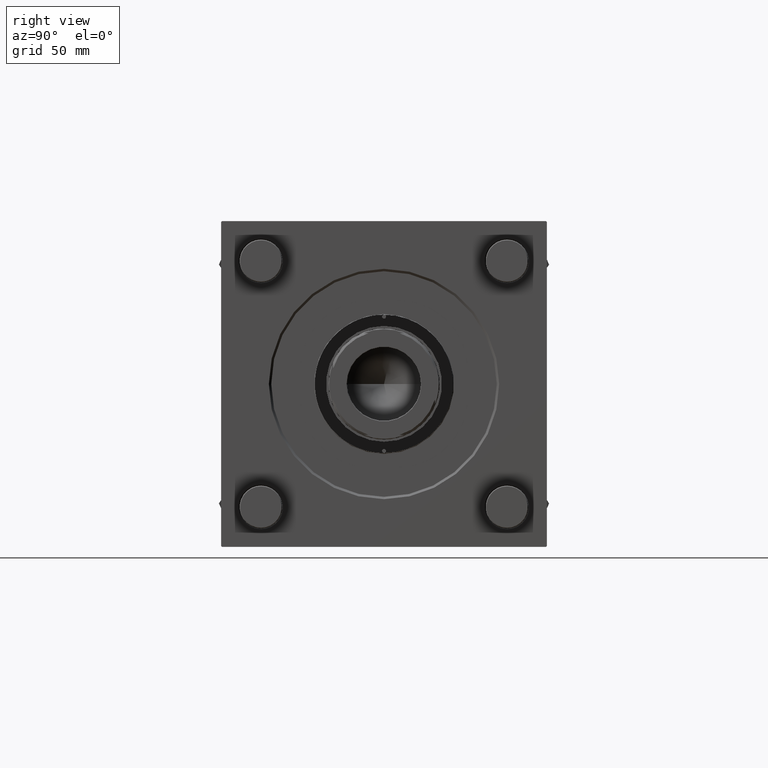
[diagram: clean part render]
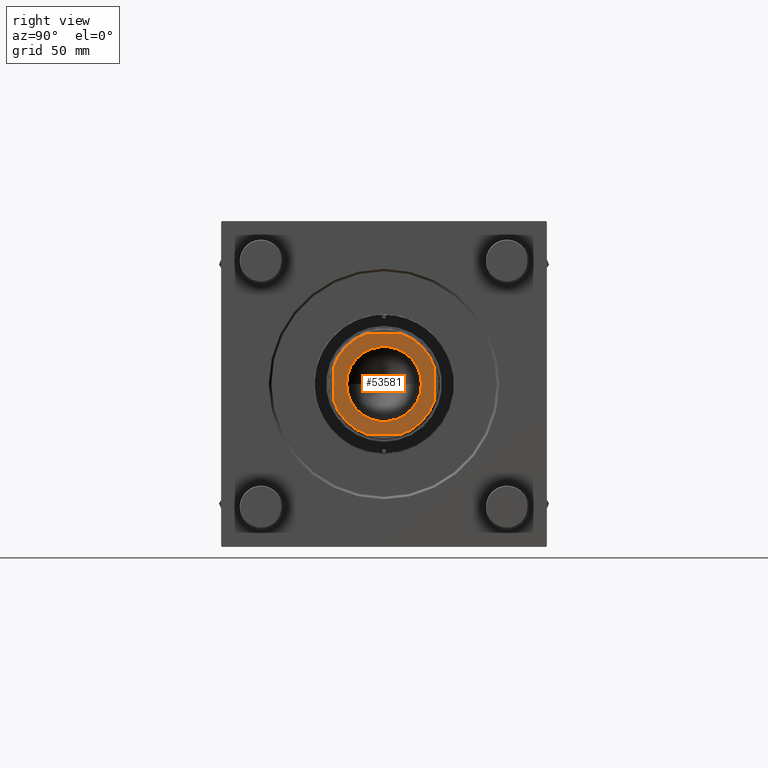
[diagram: same view with one face highlighted and labeled with its STEP entity id]
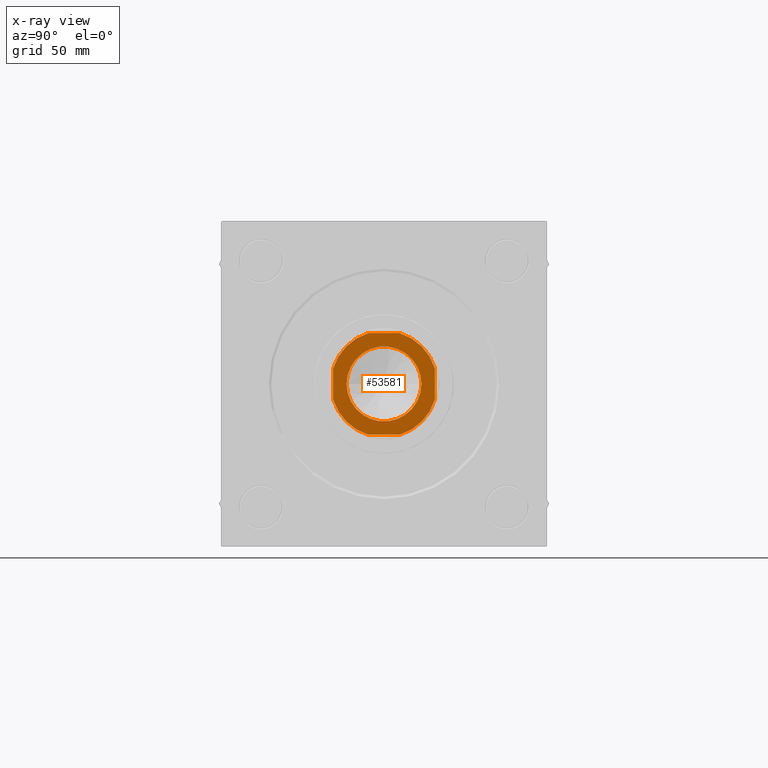
[diagram: x-ray of the same camera — body ghosted, the highlighted face saturated]
A machine part, right view. The second image highlights one B-rep face of the part: STEP entity #53581.
The next image is the same camera in x-ray: the body ghosted, the highlighted face saturated — about 0% of this face is hidden behind the body in this view.
In plain terms, the highlighted planar face has unit normal (1, 0, 0).
Its self-contained STEP definition (entity closure, byte-faithful):
#785 = EDGE_LOOP ( 'NONE', ( #44398, #4250, #26221, #39724, #33189, #56022, #6463, #19627 ) ) ;
#1546 = VERTEX_POINT ( 'NONE', #32046 ) ;
#1726 = DIRECTION ( 'NONE',  ( 1.000000000000000000, 0.000000000000000000, 0.000000000000000000 ) ) ;
#1982 = VERTEX_POINT ( 'NONE', #37404 ) ;
#2004 = DIRECTION ( 'NONE',  ( -0.000000000000000000, 0.000000000000000000, 1.000000000000000000 ) ) ;
#2307 = FACE_BOUND ( 'NONE', #55314, .T. ) ;
#2363 = CARTESIAN_POINT ( 'NONE',  ( -23.54999999999998650, 2.884043211992015027E-15, 205.0000000000000000 ) ) ;
#2621 = CARTESIAN_POINT ( 'NONE',  ( 0.000000000000000000, 0.000000000000000000, 205.0000000000000000 ) ) ;
#2744 = EDGE_CURVE ( 'NONE', #35404, #5999, #8378, .T. ) ;
#3544 = EDGE_CURVE ( 'NONE', #1982, #35404, #21824, .T. ) ;
#3733 = VECTOR ( 'NONE', #12816, 1000.000000000000000 ) ;
#4250 = ORIENTED_EDGE ( 'NONE', *, *, #51829, .T. ) ;
#4970 = DIRECTION ( 'NONE',  ( 0.000000000000000000, -0.000000000000000000, -1.000000000000000000 ) ) ;
#5042 = DIRECTION ( 'NONE',  ( 1.000000000000000000, 0.000000000000000000, 0.000000000000000000 ) ) ;
#5999 = VERTEX_POINT ( 'NONE', #20253 ) ;
#6463 = ORIENTED_EDGE ( 'NONE', *, *, #32840, .T. ) ;
#6589 = AXIS2_PLACEMENT_3D ( 'NONE', #2621, #55455, #12479 ) ;
#7793 = AXIS2_PLACEMENT_3D ( 'NONE', #17168, #4970, #31380 ) ;
#8067 = VECTOR ( 'NONE', #5042, 1000.000000000000000 ) ;
#8378 = CIRCLE ( 'NONE', #51912, 33.49999999999982236 ) ;
#8801 = AXIS2_PLACEMENT_3D ( 'NONE', #47266, #37718, #12151 ) ;
#9590 = EDGE_CURVE ( 'NONE', #29648, #56136, #14142, .T. ) ;
#10158 = EDGE_CURVE ( 'NONE', #19929, #1546, #17563, .T. ) ;
#12151 = DIRECTION ( 'NONE',  ( 1.000000000000000000, 0.000000000000000000, 0.000000000000000000 ) ) ;
#12479 = DIRECTION ( 'NONE',  ( 1.000000000000000000, 0.000000000000000000, 0.000000000000000000 ) ) ;
#12816 = DIRECTION ( 'NONE',  ( 1.084202172485504434E-16, -1.000000000000000000, 0.000000000000000000 ) ) ;
#12921 = DIRECTION ( 'NONE',  ( -1.000000000000000000, -0.000000000000000000, -0.000000000000000000 ) ) ;
#13282 = AXIS2_PLACEMENT_3D ( 'NONE', #46783, #33725, #45157 ) ;
#13406 = CIRCLE ( 'NONE', #7793, 23.54999999999998650 ) ;
#13958 = CARTESIAN_POINT ( 'NONE',  ( -32.00000000000000711, 32.00000000000000000, 205.0000000000000000 ) ) ;
#14142 = CIRCLE ( 'NONE', #6589, 23.54999999999998650 ) ;
#15736 = EDGE_CURVE ( 'NONE', #1546, #1982, #56812, .T. ) ;
#16014 = DIRECTION ( 'NONE',  ( -1.084202172485504434E-16, 1.000000000000000000, -0.000000000000000000 ) ) ;
#16171 = VERTEX_POINT ( 'NONE', #51814 ) ;
#17168 = CARTESIAN_POINT ( 'NONE',  ( 0.000000000000000000, 0.000000000000000000, 205.0000000000000000 ) ) ;
#17563 = LINE ( 'NONE', #52683, #49380 ) ;
#19627 = ORIENTED_EDGE ( 'NONE', *, *, #49730, .T. ) ;
#19724 = CARTESIAN_POINT ( 'NONE',  ( 0.000000000000000000, 0.000000000000000000, 205.0000000000000000 ) ) ;
#19929 = VERTEX_POINT ( 'NONE', #26302 ) ;
#20253 = CARTESIAN_POINT ( 'NONE',  ( -9.912113800798906027, -32.00000000000000000, 205.0000000000000000 ) ) ;
#20366 = LINE ( 'NONE', #38347, #56835 ) ;
#20399 = DIRECTION ( 'NONE',  ( 1.000000000000000000, 0.000000000000000000, 0.000000000000000000 ) ) ;
#21824 = LINE ( 'NONE', #13958, #3733 ) ;
#23562 = AXIS2_PLACEMENT_3D ( 'NONE', #37139, #2004, #1726 ) ;
#25263 = AXIS2_PLACEMENT_3D ( 'NONE', #42430, #54951, #20399 ) ;
#25331 = CIRCLE ( 'NONE', #13282, 33.49999999999985789 ) ;
#26221 = ORIENTED_EDGE ( 'NONE', *, *, #10158, .T. ) ;
#26302 = CARTESIAN_POINT ( 'NONE',  ( 9.912113800799087215, 32.00000000000000000, 205.0000000000000000 ) ) ;
#26792 = ORIENTED_EDGE ( 'NONE', *, *, #53428, .T. ) ;
#28529 = CARTESIAN_POINT ( 'NONE',  ( -32.00000000000000000, -9.912113800798907803, 205.0000000000000000 ) ) ;
#29255 = ORIENTED_EDGE ( 'NONE', *, *, #9590, .T. ) ;
#29570 = FACE_OUTER_BOUND ( 'NONE', #785, .T. ) ;
#29648 = VERTEX_POINT ( 'NONE', #2363 ) ;
#31161 = LINE ( 'NONE', #35806, #8067 ) ;
#31380 = DIRECTION ( 'NONE',  ( 1.000000000000000000, 0.000000000000000000, 0.000000000000000000 ) ) ;
#32046 = CARTESIAN_POINT ( 'NONE',  ( -9.912113800798882934, 32.00000000000000000, 205.0000000000000000 ) ) ;
#32840 = EDGE_CURVE ( 'NONE', #5999, #16171, #31161, .T. ) ;
#33189 = ORIENTED_EDGE ( 'NONE', *, *, #3544, .T. ) ;
#33725 = DIRECTION ( 'NONE',  ( -0.000000000000000000, 0.000000000000000000, 1.000000000000000000 ) ) ;
#34348 = CARTESIAN_POINT ( 'NONE',  ( 23.54999999999998650, 0.000000000000000000, 205.0000000000000000 ) ) ;
#35404 = VERTEX_POINT ( 'NONE', #28529 ) ;
#35806 = CARTESIAN_POINT ( 'NONE',  ( -32.00000000000000000, -32.00000000000000000, 205.0000000000000000 ) ) ;
#35971 = CARTESIAN_POINT ( 'NONE',  ( 32.00000000000000000, 9.912113800799094321, 205.0000000000000000 ) ) ;
#37139 = CARTESIAN_POINT ( 'NONE',  ( 0.000000000000000000, 0.000000000000000000, 205.0000000000000000 ) ) ;
#37404 = CARTESIAN_POINT ( 'NONE',  ( -32.00000000000000711, 9.912113800798875829, 205.0000000000000000 ) ) ;
#37718 = DIRECTION ( 'NONE',  ( -0.000000000000000000, 0.000000000000000000, 1.000000000000000000 ) ) ;
#38347 = CARTESIAN_POINT ( 'NONE',  ( 31.99999999999999289, 32.00000000000000000, 205.0000000000000000 ) ) ;
#38852 = PLANE ( 'NONE',  #8801 ) ;
#39724 = ORIENTED_EDGE ( 'NONE', *, *, #15736, .T. ) ;
#40810 = VERTEX_POINT ( 'NONE', #35971 ) ;
#41142 = CIRCLE ( 'NONE', #23562, 33.49999999999987921 ) ;
#42430 = CARTESIAN_POINT ( 'NONE',  ( 0.000000000000000000, 0.000000000000000000, 205.0000000000000000 ) ) ;
#44398 = ORIENTED_EDGE ( 'NONE', *, *, #44421, .T. ) ;
#44421 = EDGE_CURVE ( 'NONE', #47847, #40810, #20366, .T. ) ;
#45157 = DIRECTION ( 'NONE',  ( 1.000000000000000000, 0.000000000000000000, 0.000000000000000000 ) ) ;
#45553 = DIRECTION ( 'NONE',  ( 1.000000000000000000, 0.000000000000000000, 0.000000000000000000 ) ) ;
#45760 = CARTESIAN_POINT ( 'NONE',  ( 32.00000000000000000, -9.912113800799025043, 205.0000000000000000 ) ) ;
#46783 = CARTESIAN_POINT ( 'NONE',  ( 0.000000000000000000, 0.000000000000000000, 205.0000000000000000 ) ) ;
#47266 = CARTESIAN_POINT ( 'NONE',  ( 0.000000000000000000, 0.000000000000000000, 205.0000000000000000 ) ) ;
#47847 = VERTEX_POINT ( 'NONE', #45760 ) ;
#49380 = VECTOR ( 'NONE', #12921, 1000.000000000000000 ) ;
#49730 = EDGE_CURVE ( 'NONE', #16171, #47847, #25331, .T. ) ;
#50498 = DIRECTION ( 'NONE',  ( -0.000000000000000000, 0.000000000000000000, 1.000000000000000000 ) ) ;
#51814 = CARTESIAN_POINT ( 'NONE',  ( 9.912113800799025043, -32.00000000000000000, 205.0000000000000000 ) ) ;
#51829 = EDGE_CURVE ( 'NONE', #40810, #19929, #41142, .T. ) ;
#51912 = AXIS2_PLACEMENT_3D ( 'NONE', #19724, #50498, #45553 ) ;
#52683 = CARTESIAN_POINT ( 'NONE',  ( -32.00000000000000711, 32.00000000000000000, 205.0000000000000000 ) ) ;
#53428 = EDGE_CURVE ( 'NONE', #56136, #29648, #13406, .T. ) ;
#53581 = ADVANCED_FACE ( 'NONE', ( #2307, #29570 ), #38852, .T. ) ;
#54951 = DIRECTION ( 'NONE',  ( -0.000000000000000000, 0.000000000000000000, 1.000000000000000000 ) ) ;
#55314 = EDGE_LOOP ( 'NONE', ( #26792, #29255 ) ) ;
#55455 = DIRECTION ( 'NONE',  ( 0.000000000000000000, -0.000000000000000000, -1.000000000000000000 ) ) ;
#56022 = ORIENTED_EDGE ( 'NONE', *, *, #2744, .T. ) ;
#56136 = VERTEX_POINT ( 'NONE', #34348 ) ;
#56812 = CIRCLE ( 'NONE', #25263, 33.49999999999981526 ) ;
#56835 = VECTOR ( 'NONE', #16014, 1000.000000000000000 ) ;